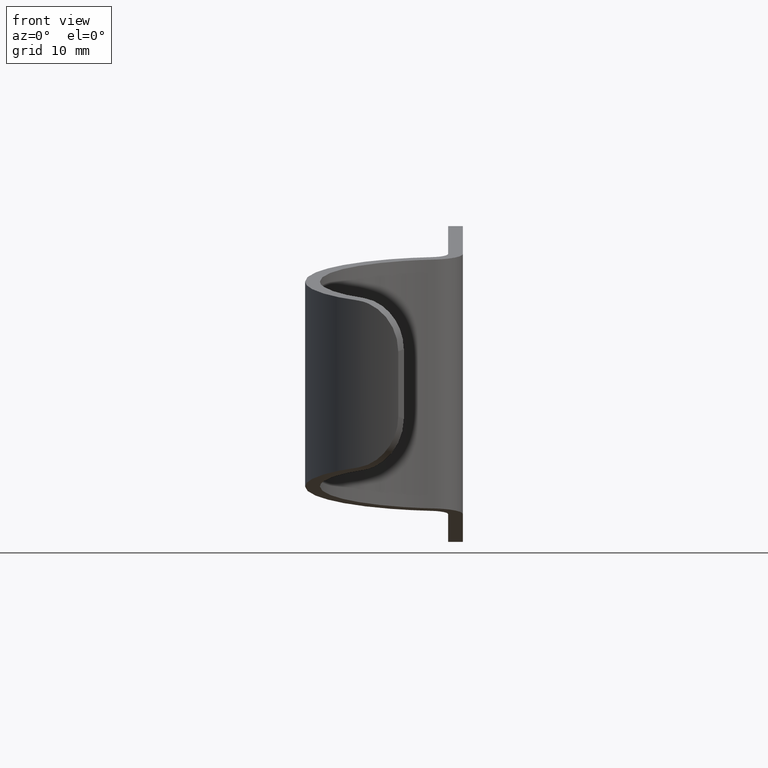
[diagram: clean part render]
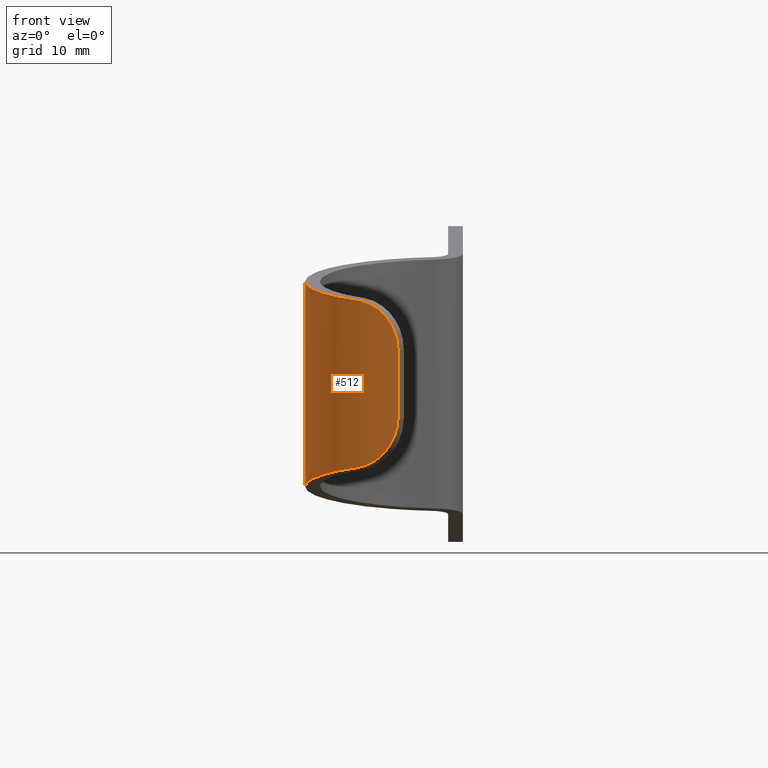
[diagram: same view with one face highlighted and labeled with its STEP entity id]
A machine part, front view. The second image highlights one B-rep face of the part: STEP entity #512.
In plain terms, the highlighted cylindrical surface (partial cylindrical patch) has radius 15 mm, axis along (-0, -0, -1).
Its self-contained STEP definition (entity closure, byte-faithful):
#14 = CARTESIAN_POINT ( 'NONE',  ( -7.013600320710913200, -13.26113426192844500, -7.037628418649070700 ) ) ;
#32 = LINE ( 'NONE', #736, #638 ) ;
#41 = CARTESIAN_POINT ( 'NONE',  ( -15.00000000000002500, 0.0000000000000000000, -10.38238348310827800 ) ) ;
#54 = CYLINDRICAL_SURFACE ( 'NONE', #547, 15.00000000000002500 ) ;
#58 = CARTESIAN_POINT ( 'NONE',  ( -9.637746092784999200, -11.49407892138418500, -8.464931949248944300 ) ) ;
#66 = B_SPLINE_CURVE_WITH_KNOTS ( 'NONE', 3,
 ( #244, #674, #163, #504, #400, #177, #627, #728, #441, #720, #562, #451, #530, #74, #349, #124, #245, #139 ),
 .UNSPECIFIED., .F., .F.,
 ( 4, 2, 2, 2, 2, 2, 2, 2, 4 ),
 ( 4.336808689942017700E-019, 0.0009591271505971293200, 0.001918254301194258200, 0.002877381451791387300, 0.003836508602388516000, 0.004795635752985645500, 0.005754762903582774600, 0.006713890054179903800, 0.007673017204777034600 ),
 .UNSPECIFIED. ) ;
#69 = CARTESIAN_POINT ( 'NONE',  ( -6.445629770991616600, -13.54560565954648900, -6.315059150948194100 ) ) ;
#74 = CARTESIAN_POINT ( 'NONE',  ( -8.393102569198235900, -12.43538013261101400, 8.077809681396376000 ) ) ;
#90 = EDGE_CURVE ( 'NONE', #261, #297, #142, .T. ) ;
#104 = CARTESIAN_POINT ( 'NONE',  ( -15.00000000000002500, 0.0000000000000000000, -10.38238348310827800 ) ) ;
#124 = CARTESIAN_POINT ( 'NONE',  ( -9.139469970365610200, -11.89816771824275900, 8.368767114577341500 ) ) ;
#127 = ORIENTED_EDGE ( 'NONE', *, *, #329, .T. ) ;
#139 = CARTESIAN_POINT ( 'NONE',  ( -9.637746092785000900, -11.49407892138418300, 8.464931949248947900 ) ) ;
#142 =( BOUNDED_CURVE ( )  B_SPLINE_CURVE ( 3, ( #456, #620, #186, #104 ),
 .UNSPECIFIED., .F., .F. ) 
 B_SPLINE_CURVE_WITH_KNOTS ( ( 4, 4 ),
 ( 3.839370375923106600, 4.712388980384689700 ),
 .UNSPECIFIED. ) 
 CURVE ( )  GEOMETRIC_REPRESENTATION_ITEM ( )  RATIONAL_B_SPLINE_CURVE ( ( 1.000000000000000000, 0.9374886493068308500, 0.9374886493068308500, 1.000000000000000000 ) ) 
 REPRESENTATION_ITEM ( '' )  );
#163 = CARTESIAN_POINT ( 'NONE',  ( -5.583950364837410700, -13.92203563926996100, 3.941284647561818800 ) ) ;
#177 = CARTESIAN_POINT ( 'NONE',  ( -5.996573578598408000, -13.74973370903933500, 5.481020791800261800 ) ) ;
#186 = CARTESIAN_POINT ( 'NONE',  ( -15.00000000000002500, -4.509693660318292900, -9.630072742477684900 ) ) ;
#187 = DIRECTION ( 'NONE',  ( -0.0000000000000000000, -0.0000000000000000000, -1.000000000000000000 ) ) ;
#189 = ORIENTED_EDGE ( 'NONE', *, *, #648, .T. ) ;
#213 = LINE ( 'NONE', #579, #372 ) ;
#223 = CARTESIAN_POINT ( 'NONE',  ( -13.09339774898261800, -8.596526757758200100, 8.948303942653790700 ) ) ;
#230 = CARTESIAN_POINT ( 'NONE',  ( -9.142923249516822900, -11.89544477830585500, -8.369575193101999500 ) ) ;
#233 = CARTESIAN_POINT ( 'NONE',  ( -9.637746092785000900, -11.49407892138418300, 8.464931949248947900 ) ) ;
#244 = CARTESIAN_POINT ( 'NONE',  ( -5.555555514381896200, -13.93326246528865500, 3.297857263757408000 ) ) ;
#245 = CARTESIAN_POINT ( 'NONE',  ( -9.390733753552028800, -11.70119792792617700, 8.430380189207825800 ) ) ;
#261 = VERTEX_POINT ( 'NONE', #331 ) ;
#262 = EDGE_CURVE ( 'NONE', #695, #297, #32, .T. ) ;
#272 = CARTESIAN_POINT ( 'NONE',  ( -5.555555514381896200, -13.93326246528865500, 3.297857263757408000 ) ) ;
#279 = CARTESIAN_POINT ( 'NONE',  ( -9.637746092785000900, -11.49407892138418300, 8.464931949248947900 ) ) ;
#291 = CARTESIAN_POINT ( 'NONE',  ( -7.910618784143045100, -12.74779841782472900, -7.797943957001268500 ) ) ;
#297 = VERTEX_POINT ( 'NONE', #41 ) ;
#298 = CARTESIAN_POINT ( 'NONE',  ( -7.676230553558712100, -12.88960614556413700, -7.632687449350017400 ) ) ;
#309 = CARTESIAN_POINT ( 'NONE',  ( -5.696994114226257900, -13.87616462230271700, -4.579293062386233800 ) ) ;
#326 = CARTESIAN_POINT ( 'NONE',  ( -15.00000000000002500, 0.0000000000000000000, 10.38238348310828100 ) ) ;
#329 = EDGE_CURVE ( 'NONE', #680, #695, #568, .T. ) ;
#331 = CARTESIAN_POINT ( 'NONE',  ( -9.637746092784999200, -11.49407892138418500, -8.464931949248944300 ) ) ;
#336 = CARTESIAN_POINT ( 'NONE',  ( -15.00000000000002500, -4.509693660318289300, 9.630072742477688400 ) ) ;
#342 = CARTESIAN_POINT ( 'NONE',  ( -5.555555514381896200, -13.93326246528865500, -3.297857263757409700 ) ) ;
#349 = CARTESIAN_POINT ( 'NONE',  ( -8.639541298262871600, -12.26599496764364100, 8.191925346740152500 ) ) ;
#352 = CARTESIAN_POINT ( 'NONE',  ( -5.555555514381897100, -13.93326246528865800, -3.622248670803282200 ) ) ;
#367 = CARTESIAN_POINT ( 'NONE',  ( -9.390726839049275300, -11.70120372571322200, -8.430379222016302500 ) ) ;
#372 = VECTOR ( 'NONE', #187, 1000.000000000000000 ) ;
#381 = VERTEX_POINT ( 'NONE', #272 ) ;
#390 = ORIENTED_EDGE ( 'NONE', *, *, #624, .T. ) ;
#396 = CARTESIAN_POINT ( 'NONE',  ( -6.622198872975336500, -13.46086005641292600, -6.567848006680935500 ) ) ;
#400 = CARTESIAN_POINT ( 'NONE',  ( -5.778363269163232700, -13.84285337936591500, 4.881440048688825900 ) ) ;
#425 = CARTESIAN_POINT ( 'NONE',  ( -5.779945765543425700, -13.84218857260583800, -4.886344935289862700 ) ) ;
#441 = CARTESIAN_POINT ( 'NONE',  ( -6.620712907000815100, -13.46158184807363700, 6.565787031869370500 ) ) ;
#445 = ORIENTED_EDGE ( 'NONE', *, *, #536, .F. ) ;
#451 = CARTESIAN_POINT ( 'NONE',  ( -7.670711738409735900, -12.89290637555493100, 7.628631241079912000 ) ) ;
#456 = CARTESIAN_POINT ( 'NONE',  ( -9.637746092784999200, -11.49407892138418500, -8.464931949248944300 ) ) ;
#461 = ORIENTED_EDGE ( 'NONE', *, *, #262, .T. ) ;
#504 = CARTESIAN_POINT ( 'NONE',  ( -5.694806734176816900, -13.87705856002795500, 4.569534877898227000 ) ) ;
#511 = CARTESIAN_POINT ( 'NONE',  ( -5.584473259872661200, -13.92182979972608700, -3.946823219218563100 ) ) ;
#512 = ADVANCED_FACE ( 'NONE', ( #537 ), #54, .T. ) ;
#519 = CARTESIAN_POINT ( 'NONE',  ( 0.0000000000000000000, 0.0000000000000000000, 16.00000000000000000 ) ) ;
#522 = CARTESIAN_POINT ( 'NONE',  ( -8.397877976746464400, -12.43221217391370500, -8.080355739988482000 ) ) ;
#530 = CARTESIAN_POINT ( 'NONE',  ( -7.909852173960374000, -12.74821902720976200, 7.797275346387164200 ) ) ;
#536 = EDGE_CURVE ( 'NONE', #381, #702, #213, .T. ) ;
#537 = FACE_OUTER_BOUND ( 'NONE', #694, .T. ) ;
#547 = AXIS2_PLACEMENT_3D ( 'NONE', #519, #555, #626 ) ;
#555 = DIRECTION ( 'NONE',  ( -0.0000000000000000000, -0.0000000000000000000, -1.000000000000000000 ) ) ;
#562 = CARTESIAN_POINT ( 'NONE',  ( -7.221807769488709300, -13.14961390775996400, 7.247366162367809400 ) ) ;
#568 =( BOUNDED_CURVE ( )  B_SPLINE_CURVE ( 3, ( #279, #223, #336, #326 ),
 .UNSPECIFIED., .F., .T. ) 
 B_SPLINE_CURVE_WITH_KNOTS ( ( 4, 4 ),
 ( 0.6977777223333139200, 1.570796326794896600 ),
 .UNSPECIFIED. ) 
 CURVE ( )  GEOMETRIC_REPRESENTATION_ITEM ( )  RATIONAL_B_SPLINE_CURVE ( ( 1.000000000000000000, 0.9374886493068308500, 0.9374886493068308500, 1.000000000000000000 ) ) 
 REPRESENTATION_ITEM ( '' )  );
#579 = CARTESIAN_POINT ( 'NONE',  ( -5.555555514381896200, -13.93326246528865500, 16.00000000000000000 ) ) ;
#592 = CARTESIAN_POINT ( 'NONE',  ( -6.133373299373571000, -13.68982497328445400, -5.773542738562362300 ) ) ;
#596 = CARTESIAN_POINT ( 'NONE',  ( -15.00000000000002500, 0.0000000000000000000, 10.38238348310828100 ) ) ;
#600 = CARTESIAN_POINT ( 'NONE',  ( -5.997261030408198600, -13.74942972145937000, -5.482347236709000700 ) ) ;
#620 = CARTESIAN_POINT ( 'NONE',  ( -13.09339774898261400, -8.596526757758205400, -8.948303942653785400 ) ) ;
#624 = EDGE_CURVE ( 'NONE', #381, #680, #66, .T. ) ;
#626 = DIRECTION ( 'NONE',  ( -1.000000000000000000, 0.0000000000000000000, 0.0000000000000000000 ) ) ;
#627 = CARTESIAN_POINT ( 'NONE',  ( -6.129642026874708300, -13.69148676858378400, 5.766050912672898900 ) ) ;
#638 = VECTOR ( 'NONE', #749, 1000.000000000000000 ) ;
#645 = CARTESIAN_POINT ( 'NONE',  ( -8.647479099572398900, -12.26033267259652400, -8.195137281640711500 ) ) ;
#648 = EDGE_CURVE ( 'NONE', #261, #702, #675, .T. ) ;
#674 = CARTESIAN_POINT ( 'NONE',  ( -5.555555514381895300, -13.93326246528865300, 3.622171258798634300 ) ) ;
#675 = B_SPLINE_CURVE_WITH_KNOTS ( 'NONE', 3,
 ( #58, #367, #230, #645, #522, #291, #298, #734, #14, #396, #69, #592, #600, #425, #309, #511, #352, #342 ),
 .UNSPECIFIED., .F., .F.,
 ( 4, 2, 2, 2, 2, 2, 2, 2, 4 ),
 ( 5.204170427930421300E-018, 0.0009592418317419000700, 0.001918483663483794900, 0.002877725495225689700, 0.003836967326967584700, 0.004796209158709479600, 0.005755450990451374200, 0.006714692822193269600, 0.007673934653935164100 ),
 .UNSPECIFIED. ) ;
#680 = VERTEX_POINT ( 'NONE', #233 ) ;
#694 = EDGE_LOOP ( 'NONE', ( #127, #461, #723, #189, #445, #390 ) ) ;
#695 = VERTEX_POINT ( 'NONE', #596 ) ;
#702 = VERTEX_POINT ( 'NONE', #709 ) ;
#709 = CARTESIAN_POINT ( 'NONE',  ( -5.555555514381896200, -13.93326246528865500, -3.297857263757409700 ) ) ;
#720 = CARTESIAN_POINT ( 'NONE',  ( -7.011144636354191400, -13.26242346396142600, 7.034955633385624000 ) ) ;
#723 = ORIENTED_EDGE ( 'NONE', *, *, #90, .F. ) ;
#728 = CARTESIAN_POINT ( 'NONE',  ( -6.440598205948078600, -13.54798937338939300, 6.307326094352730700 ) ) ;
#734 = CARTESIAN_POINT ( 'NONE',  ( -7.228764884468406900, -13.14577576045740400, -7.253888702831828200 ) ) ;
#736 = CARTESIAN_POINT ( 'NONE',  ( -15.00000000000002500, 0.0000000000000000000, 16.00000000000000000 ) ) ;
#749 = DIRECTION ( 'NONE',  ( -0.0000000000000000000, -0.0000000000000000000, -1.000000000000000000 ) ) ;